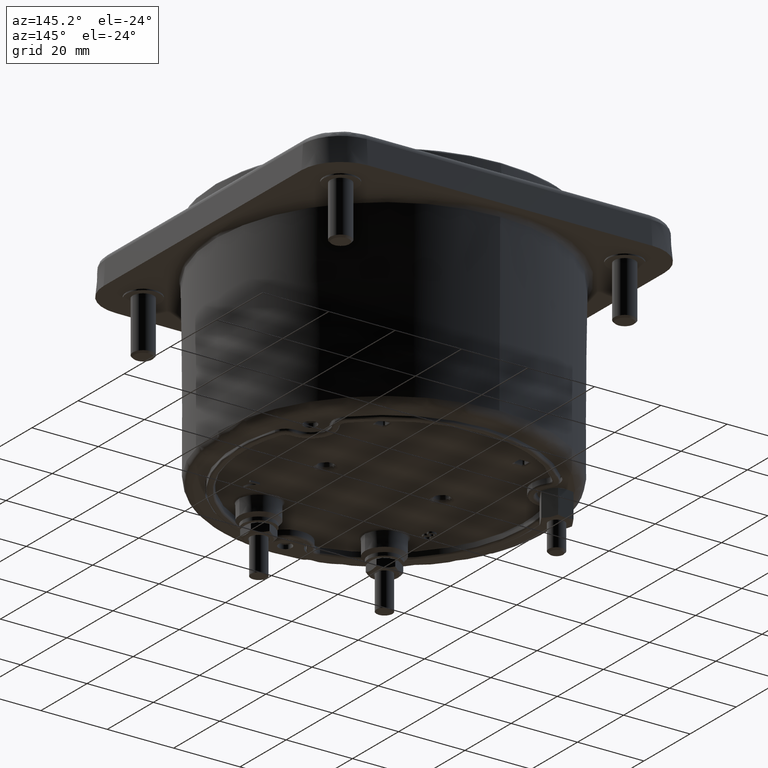
[diagram: clean part render]
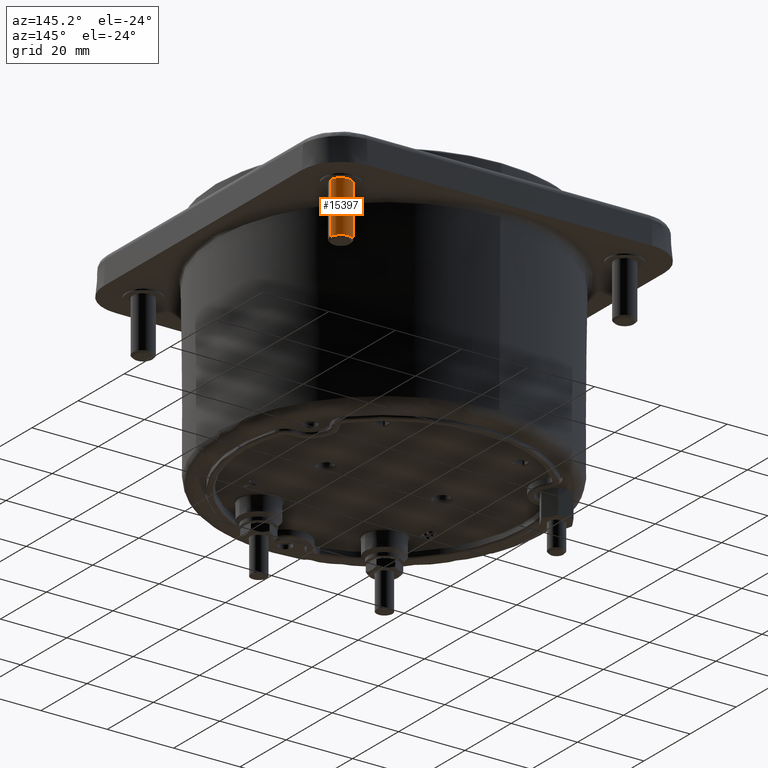
[diagram: same view with one face highlighted and labeled with its STEP entity id]
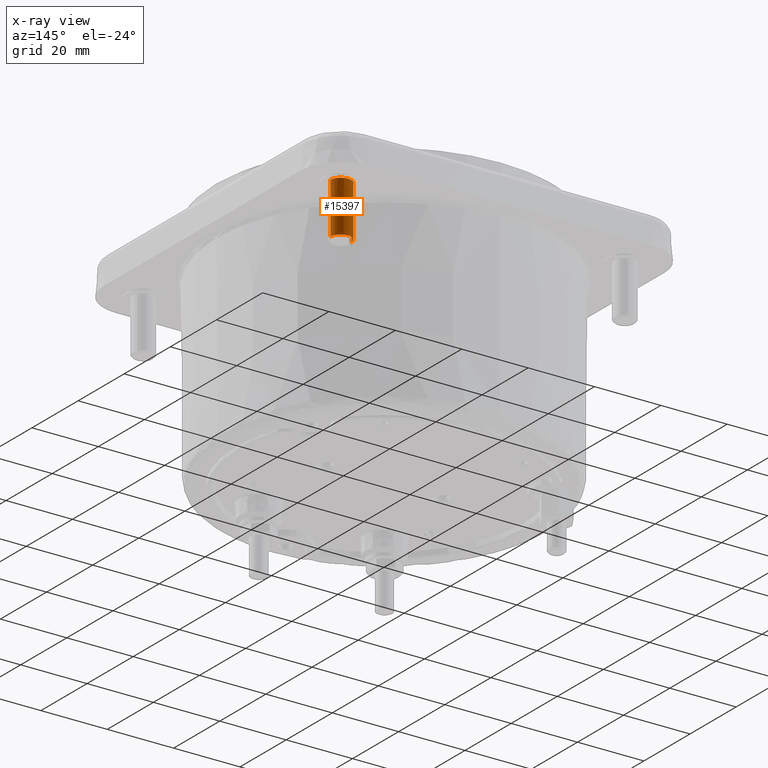
[diagram: x-ray of the same camera — body ghosted, the highlighted face saturated]
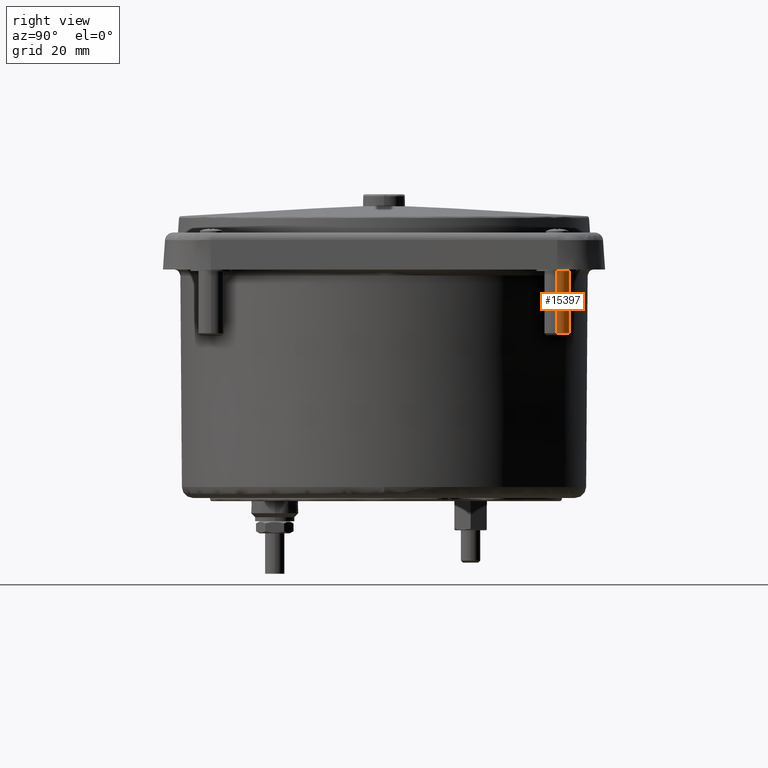
[diagram: same view with one face highlighted and labeled with its STEP entity id]
A machine part, auxiliary view. The second image highlights one B-rep face of the part: STEP entity #15397.
The next image is the same camera in x-ray: the body ghosted, the highlighted face saturated — about 0% of this face is hidden behind the body in this view.
A second angle (right view) of the same face is appended — the face is thin or edge-on in the first view.
In plain terms, the highlighted cylindrical surface (edge-blend (fillet) strip) has radius 3.15 mm, axis along (0, 0, -1).
Its self-contained STEP definition (entity closure, byte-faithful):
#193 = VECTOR ( 'NONE', #8258, 39.37007874015748143 ) ;
#1059 = CARTESIAN_POINT ( 'NONE',  ( 1.809055117013905756, 1.685039371175066858, 2.295275590551181022 ) ) ;
#1867 = CARTESIAN_POINT ( 'NONE',  ( 1.809055117011159064, 1.685039371175066858, 1.448818897637795367 ) ) ;
#2150 = CARTESIAN_POINT ( 'NONE',  ( 1.685039368982409691, 1.685039371175066858, 2.295275590551181022 ) ) ;
#2254 = DIRECTION ( 'NONE',  ( 0.000000000000000000, 0.000000000000000000, -1.000000000000000000 ) ) ;
#2633 = ORIENTED_EDGE ( 'NONE', *, *, #2841, .T. ) ;
#2841 = EDGE_CURVE ( 'NONE', #19899, #17156, #8776, .T. ) ;
#3226 = EDGE_CURVE ( 'NONE', #16924, #12241, #11865, .T. ) ;
#3795 = ORIENTED_EDGE ( 'NONE', *, *, #3226, .T. ) ;
#4468 = EDGE_CURVE ( 'NONE', #12241, #19899, #19356, .T. ) ;
#4581 = ORIENTED_EDGE ( 'NONE', *, *, #9394, .F. ) ;
#6658 = AXIS2_PLACEMENT_3D ( 'NONE', #17639, #21258, #14544 ) ;
#7081 = FACE_OUTER_BOUND ( 'NONE', #9070, .T. ) ;
#7692 = DIRECTION ( 'NONE',  ( 0.000000000000000000, 0.000000000000000000, -1.000000000000000000 ) ) ;
#8258 = DIRECTION ( 'NONE',  ( 0.000000000000000000, 0.000000000000000000, -1.000000000000000000 ) ) ;
#8776 = CIRCLE ( 'NONE', #6658, 0.1240157480314960647 ) ;
#9070 = EDGE_LOOP ( 'NONE', ( #3795, #20117, #2633, #4581 ) ) ;
#9394 = EDGE_CURVE ( 'NONE', #16924, #17156, #12374, .T. ) ;
#11490 = AXIS2_PLACEMENT_3D ( 'NONE', #2150, #2254, #15390 ) ;
#11865 = CIRCLE ( 'NONE', #18562, 0.1240157480314960647 ) ;
#12170 = VECTOR ( 'NONE', #7692, 39.37007874015748143 ) ;
#12241 = VERTEX_POINT ( 'NONE', #21667 ) ;
#12374 = LINE ( 'NONE', #14128, #12170 ) ;
#13014 = CARTESIAN_POINT ( 'NONE',  ( 1.561023620953660096, 1.685039371175066858, 1.448818897637795367 ) ) ;
#14128 = CARTESIAN_POINT ( 'NONE',  ( 1.561023620950913626, 1.685039371175066858, 2.295275590551181022 ) ) ;
#14544 = DIRECTION ( 'NONE',  ( -1.000000000000000000, 0.000000000000000000, 0.000000000000000000 ) ) ;
#15390 = DIRECTION ( 'NONE',  ( -1.000000000000000000, 0.000000000000000000, 0.000000000000000000 ) ) ;
#15397 = ADVANCED_FACE ( 'NONE', ( #7081 ), #20892, .T. ) ;
#16924 = VERTEX_POINT ( 'NONE', #17431 ) ;
#16925 = DIRECTION ( 'NONE',  ( 0.000000000000000000, 0.000000000000000000, -1.000000000000000000 ) ) ;
#17156 = VERTEX_POINT ( 'NONE', #13014 ) ;
#17431 = CARTESIAN_POINT ( 'NONE',  ( 1.561023620950913626, 1.685039371175066858, 2.055118110236220819 ) ) ;
#17639 = CARTESIAN_POINT ( 'NONE',  ( 1.685039368982409691, 1.685039371175066858, 1.448818897637795367 ) ) ;
#18562 = AXIS2_PLACEMENT_3D ( 'NONE', #20859, #16925, #20437 ) ;
#19356 = LINE ( 'NONE', #1059, #193 ) ;
#19899 = VERTEX_POINT ( 'NONE', #1867 ) ;
#20117 = ORIENTED_EDGE ( 'NONE', *, *, #4468, .T. ) ;
#20437 = DIRECTION ( 'NONE',  ( -1.000000000000000000, 0.000000000000000000, 0.000000000000000000 ) ) ;
#20859 = CARTESIAN_POINT ( 'NONE',  ( 1.685039368982409691, 1.685039371175066858, 2.055118110236220819 ) ) ;
#20892 = CYLINDRICAL_SURFACE ( 'NONE', #11490, 0.1240157480314960647 ) ;
#21258 = DIRECTION ( 'NONE',  ( -0.000000000000000000, -0.000000000000000000, 1.000000000000000000 ) ) ;
#21667 = CARTESIAN_POINT ( 'NONE',  ( 1.809055117013905756, 1.685039371175066858, 2.055118110236220819 ) ) ;